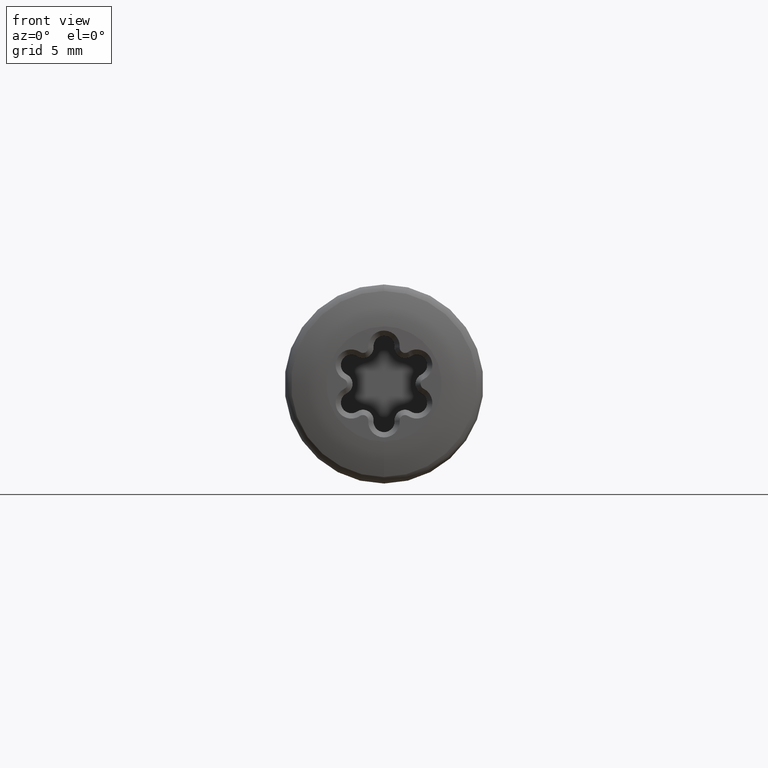
[diagram: clean part render]
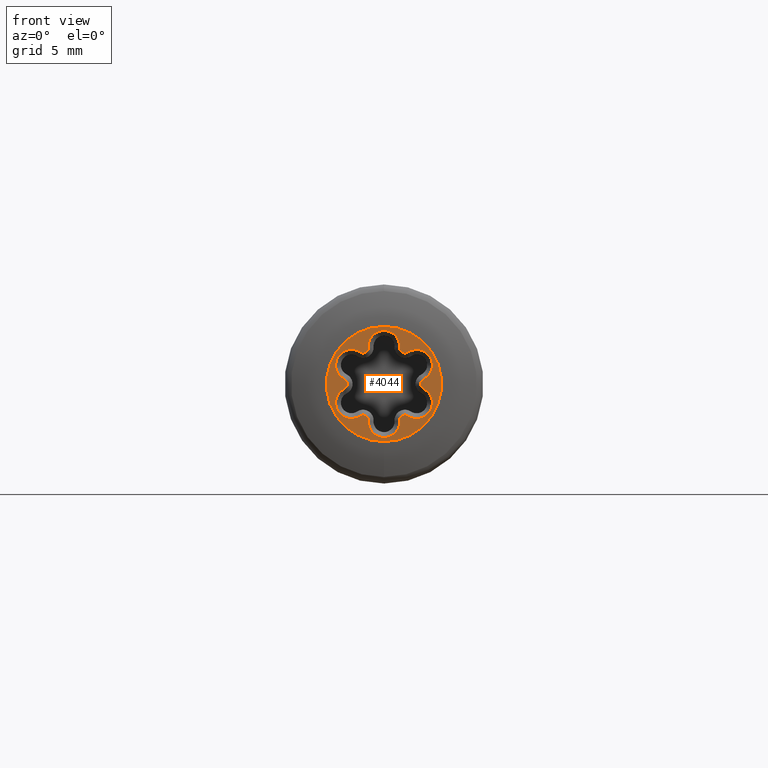
[diagram: same view with one face highlighted and labeled with its STEP entity id]
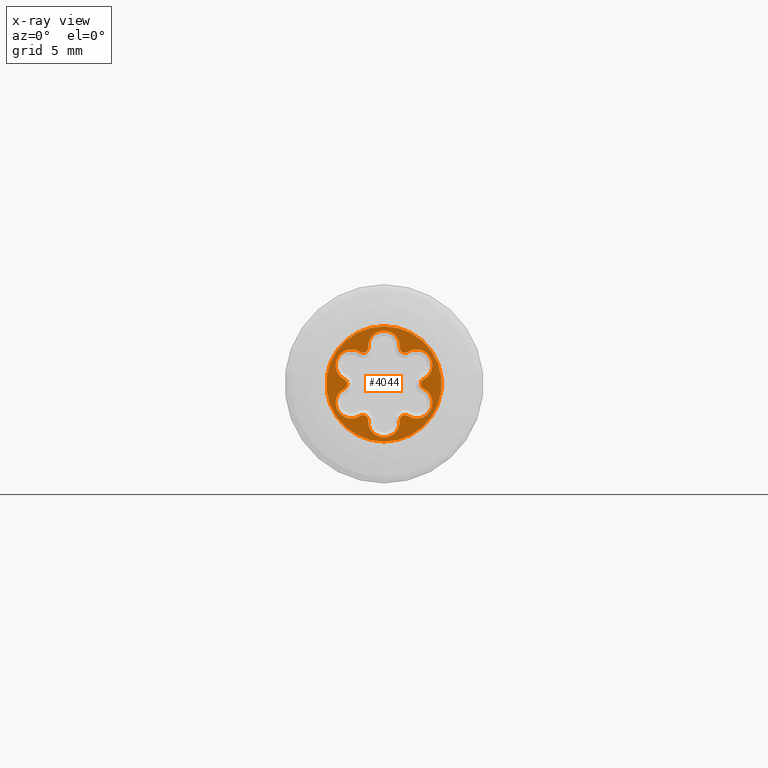
[diagram: x-ray of the same camera — body ghosted, the highlighted face saturated]
A machine part, front view. The second image highlights one B-rep face of the part: STEP entity #4044.
The next image is the same camera in x-ray: the body ghosted, the highlighted face saturated — about 0% of this face is hidden behind the body in this view.
In plain terms, the highlighted planar face has unit normal (0, -1, -0).
Its self-contained STEP definition (entity closure, byte-faithful):
#2 = ORIENTED_EDGE ( 'NONE', *, *, #3401, .T. ) ;
#63 = CIRCLE ( 'NONE', #4125, 0.2541309189016998649 ) ;
#100 = DIRECTION ( 'NONE',  ( 0.000000000000000000, 0.000000000000000000, -1.000000000000000000 ) ) ;
#101 = CARTESIAN_POINT ( 'NONE',  ( -5.195843755245734660E-15, -5.204748896376251932E-17, 1.800000000000000488 ) ) ;
#107 = AXIS2_PLACEMENT_3D ( 'NONE', #1787, #4065, #2459 ) ;
#155 = CARTESIAN_POINT ( 'NONE',  ( 0.000000000000000000, 0.000000000000000000, 0.000000000000000000 ) ) ;
#158 = VERTEX_POINT ( 'NONE', #1614 ) ;
#217 = ORIENTED_EDGE ( 'NONE', *, *, #255, .T. ) ;
#218 = CARTESIAN_POINT ( 'NONE',  ( -1.142978440325485012, -5.204748896376251932E-17, 1.524142932372337889 ) ) ;
#255 = EDGE_CURVE ( 'NONE', #2388, #3119, #1817, .T. ) ;
#315 = CIRCLE ( 'NONE', #3437, 0.7499999999999976685 ) ;
#448 = ORIENTED_EDGE ( 'NONE', *, *, #2203, .T. ) ;
#479 = DIRECTION ( 'NONE',  ( 0.000000000000000000, 0.000000000000000000, -1.000000000000000000 ) ) ;
#544 = EDGE_CURVE ( 'NONE', #3067, #1203, #2334, .T. ) ;
#559 = VERTEX_POINT ( 'NONE', #1371 ) ;
#570 = CARTESIAN_POINT ( 'NONE',  ( -0.7484572782702072491, -5.204748896376251932E-17, -1.751919831485956314 ) ) ;
#599 = EDGE_CURVE ( 'NONE', #2817, #559, #3343, .T. ) ;
#606 = ORIENTED_EDGE ( 'NONE', *, *, #1900, .T. ) ;
#761 = EDGE_CURVE ( 'NONE', #1203, #2388, #1322, .T. ) ;
#805 = DIRECTION ( 'NONE',  ( 0.000000000000000000, -1.000000000000000000, -0.000000000000000000 ) ) ;
#816 = CIRCLE ( 'NONE', #1005, 2.749999999999999112 ) ;
#856 = DIRECTION ( 'NONE',  ( 0.000000000000000000, 0.000000000000000000, -1.000000000000000000 ) ) ;
#867 = CIRCLE ( 'NONE', #107, 0.7499999999999990008 ) ;
#932 = CARTESIAN_POINT ( 'NONE',  ( 1.002065459450855345, -5.204748896376251932E-17, -1.735628288278716846 ) ) ;
#964 = VERTEX_POINT ( 'NONE', #1216 ) ;
#1005 = AXIS2_PLACEMENT_3D ( 'NONE', #155, #3039, #479 ) ;
#1031 = CARTESIAN_POINT ( 'NONE',  ( 1.558845726811993071, -5.204748896376251932E-17, -0.8999999999999954703 ) ) ;
#1043 = CARTESIAN_POINT ( 'NONE',  ( 2.004130918901697367, -5.204748896376251932E-17, 7.043594962189453890E-15 ) ) ;
#1051 = ORIENTED_EDGE ( 'NONE', *, *, #544, .T. ) ;
#1076 = DIRECTION ( 'NONE',  ( -0.000000000000000000, -1.000000000000000000, -0.000000000000000000 ) ) ;
#1160 = VERTEX_POINT ( 'NONE', #1548 ) ;
#1203 = VERTEX_POINT ( 'NONE', #570 ) ;
#1216 = CARTESIAN_POINT ( 'NONE',  ( 0.000000000000000000, 0.000000000000000000, -2.749999999999999112 ) ) ;
#1316 = CARTESIAN_POINT ( 'NONE',  ( 0.7484572782702193505, -5.204748896376251932E-17, -1.751919831485949430 ) ) ;
#1322 = CIRCLE ( 'NONE', #3251, 0.2541309189017003645 ) ;
#1334 = ORIENTED_EDGE ( 'NONE', *, *, #3344, .T. ) ;
#1338 = CARTESIAN_POINT ( 'NONE',  ( 0.7484572782702089144, -5.204748896376251932E-17, 1.751919831485955870 ) ) ;
#1371 = CARTESIAN_POINT ( 'NONE',  ( -0.7484572782702213489, -5.204748896376251932E-17, 1.751919831485949208 ) ) ;
#1418 = EDGE_LOOP ( 'NONE', ( #1334, #606, #2, #2697, #1051, #4073, #217, #3807, #3296, #3973, #448, #3055 ) ) ;
#1470 = VERTEX_POINT ( 'NONE', #4178 ) ;
#1496 = CARTESIAN_POINT ( 'NONE',  ( 1.002065459450842244, -5.204748896376251932E-17, 1.735628288278724840 ) ) ;
#1548 = CARTESIAN_POINT ( 'NONE',  ( 1.142978440325487233, -5.204748896376251932E-17, -1.524142932372336334 ) ) ;
#1567 = DIRECTION ( 'NONE',  ( 0.000000000000000000, 1.000000000000000000, 0.000000000000000000 ) ) ;
#1614 = CARTESIAN_POINT ( 'NONE',  ( 1.891435718595694038, -5.204748896376251932E-17, 0.2277768991136176480 ) ) ;
#1619 = DIRECTION ( 'NONE',  ( 0.000000000000000000, 0.000000000000000000, -1.000000000000000000 ) ) ;
#1670 = DIRECTION ( 'NONE',  ( 0.000000000000000000, 0.000000000000000000, -1.000000000000000000 ) ) ;
#1685 = DIRECTION ( 'NONE',  ( 0.000000000000000000, 0.000000000000000000, -1.000000000000000000 ) ) ;
#1690 = VERTEX_POINT ( 'NONE', #3121 ) ;
#1702 = DIRECTION ( 'NONE',  ( 0.000000000000000000, 1.000000000000000000, 0.000000000000000000 ) ) ;
#1739 = DIRECTION ( 'NONE',  ( -0.000000000000000000, -1.000000000000000000, -0.000000000000000000 ) ) ;
#1740 = CARTESIAN_POINT ( 'NONE',  ( 1.558845726811987520, -5.204748896376251932E-17, 0.9000000000000051292 ) ) ;
#1787 = CARTESIAN_POINT ( 'NONE',  ( -1.558845726811993071, -5.204748896376251932E-17, 0.8999999999999946931 ) ) ;
#1817 = CIRCLE ( 'NONE', #3413, 0.7499999999999978906 ) ;
#1819 = CARTESIAN_POINT ( 'NONE',  ( 4.750000000000000000, -5.204748896376251932E-17, 0.000000000000000000 ) ) ;
#1828 = VERTEX_POINT ( 'NONE', #1338 ) ;
#1853 = AXIS2_PLACEMENT_3D ( 'NONE', #1819, #805, #856 ) ;
#1900 = EDGE_CURVE ( 'NONE', #158, #1690, #63, .T. ) ;
#1988 = DIRECTION ( 'NONE',  ( 0.000000000000000000, 1.000000000000000000, 0.000000000000000000 ) ) ;
#2028 = DIRECTION ( 'NONE',  ( 0.000000000000000000, 0.000000000000000000, -1.000000000000000000 ) ) ;
#2117 = EDGE_CURVE ( 'NONE', #1160, #3067, #2441, .T. ) ;
#2203 = EDGE_CURVE ( 'NONE', #559, #1828, #3359, .T. ) ;
#2248 = FACE_OUTER_BOUND ( 'NONE', #2338, .T. ) ;
#2331 = DIRECTION ( 'NONE',  ( 8.673617379884062096E-16, 0.000000000000000000, -1.000000000000000000 ) ) ;
#2334 = CIRCLE ( 'NONE', #2678, 0.7499999999999972244 ) ;
#2338 = EDGE_LOOP ( 'NONE', ( #3861 ) ) ;
#2349 = DIRECTION ( 'NONE',  ( -0.000000000000000000, -1.000000000000000000, -0.000000000000000000 ) ) ;
#2388 = VERTEX_POINT ( 'NONE', #3624 ) ;
#2441 = CIRCLE ( 'NONE', #3703, 0.2541309189017008086 ) ;
#2459 = DIRECTION ( 'NONE',  ( 0.000000000000000000, 0.000000000000000000, -1.000000000000000000 ) ) ;
#2478 = EDGE_CURVE ( 'NONE', #964, #964, #816, .T. ) ;
#2495 = PLANE ( 'NONE',  #1853 ) ;
#2678 = AXIS2_PLACEMENT_3D ( 'NONE', #3989, #3623, #2028 ) ;
#2697 = ORIENTED_EDGE ( 'NONE', *, *, #2117, .T. ) ;
#2710 = CARTESIAN_POINT ( 'NONE',  ( -1.002065459450855123, -5.204748896376251932E-17, 1.735628288278717068 ) ) ;
#2777 = CARTESIAN_POINT ( 'NONE',  ( 1.142978440325474354, -5.204748896376251932E-17, 1.524142932372344328 ) ) ;
#2817 = VERTEX_POINT ( 'NONE', #218 ) ;
#2831 = AXIS2_PLACEMENT_3D ( 'NONE', #101, #1988, #3650 ) ;
#2861 = CARTESIAN_POINT ( 'NONE',  ( -1.558845726811987076, -5.204748896376251932E-17, -0.9000000000000053513 ) ) ;
#2871 = FACE_BOUND ( 'NONE', #1418, .T. ) ;
#2874 = EDGE_CURVE ( 'NONE', #1828, #4212, #3258, .T. ) ;
#3036 = DIRECTION ( 'NONE',  ( 0.000000000000000000, 0.000000000000000000, -1.000000000000000000 ) ) ;
#3039 = DIRECTION ( 'NONE',  ( -0.000000000000000000, -1.000000000000000000, -0.000000000000000000 ) ) ;
#3055 = ORIENTED_EDGE ( 'NONE', *, *, #2874, .T. ) ;
#3067 = VERTEX_POINT ( 'NONE', #1316 ) ;
#3119 = VERTEX_POINT ( 'NONE', #3319 ) ;
#3121 = CARTESIAN_POINT ( 'NONE',  ( 1.891435718595694704, -5.204748896376251932E-17, -0.2277768991136057963 ) ) ;
#3251 = AXIS2_PLACEMENT_3D ( 'NONE', #3305, #1739, #1685 ) ;
#3258 = CIRCLE ( 'NONE', #3938, 0.2541309189017008086 ) ;
#3296 = ORIENTED_EDGE ( 'NONE', *, *, #3872, .T. ) ;
#3305 = CARTESIAN_POINT ( 'NONE',  ( -1.002065459450841578, -5.204748896376251932E-17, -1.735628288278725062 ) ) ;
#3306 = DIRECTION ( 'NONE',  ( 0.000000000000000000, 1.000000000000000000, 0.000000000000000000 ) ) ;
#3319 = CARTESIAN_POINT ( 'NONE',  ( -1.891435718595694260, -5.204748896376251932E-17, -0.2277768991136178423 ) ) ;
#3343 = CIRCLE ( 'NONE', #3546, 0.2541309189016996983 ) ;
#3344 = EDGE_CURVE ( 'NONE', #4212, #158, #315, .T. ) ;
#3351 = DIRECTION ( 'NONE',  ( -0.000000000000000000, -1.000000000000000000, -0.000000000000000000 ) ) ;
#3359 = CIRCLE ( 'NONE', #2831, 0.7499999999999972244 ) ;
#3376 = CIRCLE ( 'NONE', #3602, 0.7499999999999972244 ) ;
#3401 = EDGE_CURVE ( 'NONE', #1690, #1160, #3376, .T. ) ;
#3413 = AXIS2_PLACEMENT_3D ( 'NONE', #2861, #1567, #3876 ) ;
#3437 = AXIS2_PLACEMENT_3D ( 'NONE', #1740, #3306, #2331 ) ;
#3490 = CIRCLE ( 'NONE', #3520, 0.2541309189016995318 ) ;
#3504 = EDGE_CURVE ( 'NONE', #3119, #1470, #3490, .T. ) ;
#3520 = AXIS2_PLACEMENT_3D ( 'NONE', #3649, #3351, #100 ) ;
#3538 = DIRECTION ( 'NONE',  ( -0.000000000000000000, -1.000000000000000000, -0.000000000000000000 ) ) ;
#3546 = AXIS2_PLACEMENT_3D ( 'NONE', #2710, #2349, #3036 ) ;
#3602 = AXIS2_PLACEMENT_3D ( 'NONE', #1031, #1702, #3635 ) ;
#3623 = DIRECTION ( 'NONE',  ( 0.000000000000000000, 1.000000000000000000, 0.000000000000000000 ) ) ;
#3624 = CARTESIAN_POINT ( 'NONE',  ( -1.142978440325474798, -5.204748896376251932E-17, -1.524142932372344328 ) ) ;
#3635 = DIRECTION ( 'NONE',  ( 0.000000000000000000, 0.000000000000000000, -1.000000000000000000 ) ) ;
#3638 = DIRECTION ( 'NONE',  ( 0.000000000000000000, 0.000000000000000000, -1.000000000000000000 ) ) ;
#3649 = CARTESIAN_POINT ( 'NONE',  ( -2.004130918901697367, -5.204748896376251932E-17, -6.856091008335676607E-15 ) ) ;
#3650 = DIRECTION ( 'NONE',  ( 0.000000000000000000, 0.000000000000000000, -1.000000000000000000 ) ) ;
#3703 = AXIS2_PLACEMENT_3D ( 'NONE', #932, #3538, #1619 ) ;
#3769 = DIRECTION ( 'NONE',  ( -0.000000000000000000, -1.000000000000000000, -0.000000000000000000 ) ) ;
#3807 = ORIENTED_EDGE ( 'NONE', *, *, #3504, .T. ) ;
#3861 = ORIENTED_EDGE ( 'NONE', *, *, #2478, .T. ) ;
#3872 = EDGE_CURVE ( 'NONE', #1470, #2817, #867, .T. ) ;
#3876 = DIRECTION ( 'NONE',  ( -1.734723475976812025E-15, 0.000000000000000000, -1.000000000000000000 ) ) ;
#3938 = AXIS2_PLACEMENT_3D ( 'NONE', #1496, #3769, #1670 ) ;
#3973 = ORIENTED_EDGE ( 'NONE', *, *, #599, .T. ) ;
#3989 = CARTESIAN_POINT ( 'NONE',  ( 5.416280179092257454E-15, -5.204748896376251932E-17, -1.800000000000000488 ) ) ;
#4044 = ADVANCED_FACE ( 'NONE', ( #2871, #2248 ), #2495, .T. ) ;
#4065 = DIRECTION ( 'NONE',  ( 0.000000000000000000, 1.000000000000000000, 0.000000000000000000 ) ) ;
#4073 = ORIENTED_EDGE ( 'NONE', *, *, #761, .T. ) ;
#4125 = AXIS2_PLACEMENT_3D ( 'NONE', #1043, #1076, #3638 ) ;
#4178 = CARTESIAN_POINT ( 'NONE',  ( -1.891435718595695370, -5.204748896376251932E-17, 0.2277768991136045751 ) ) ;
#4212 = VERTEX_POINT ( 'NONE', #2777 ) ;